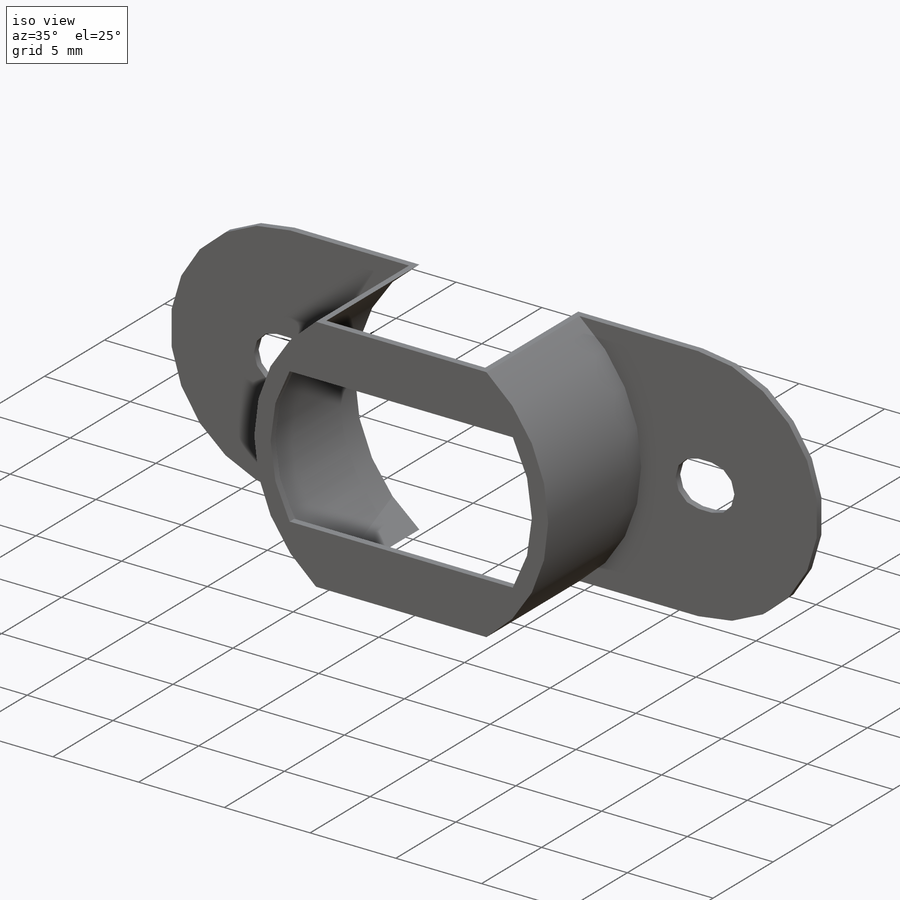
[diagram: iso view]
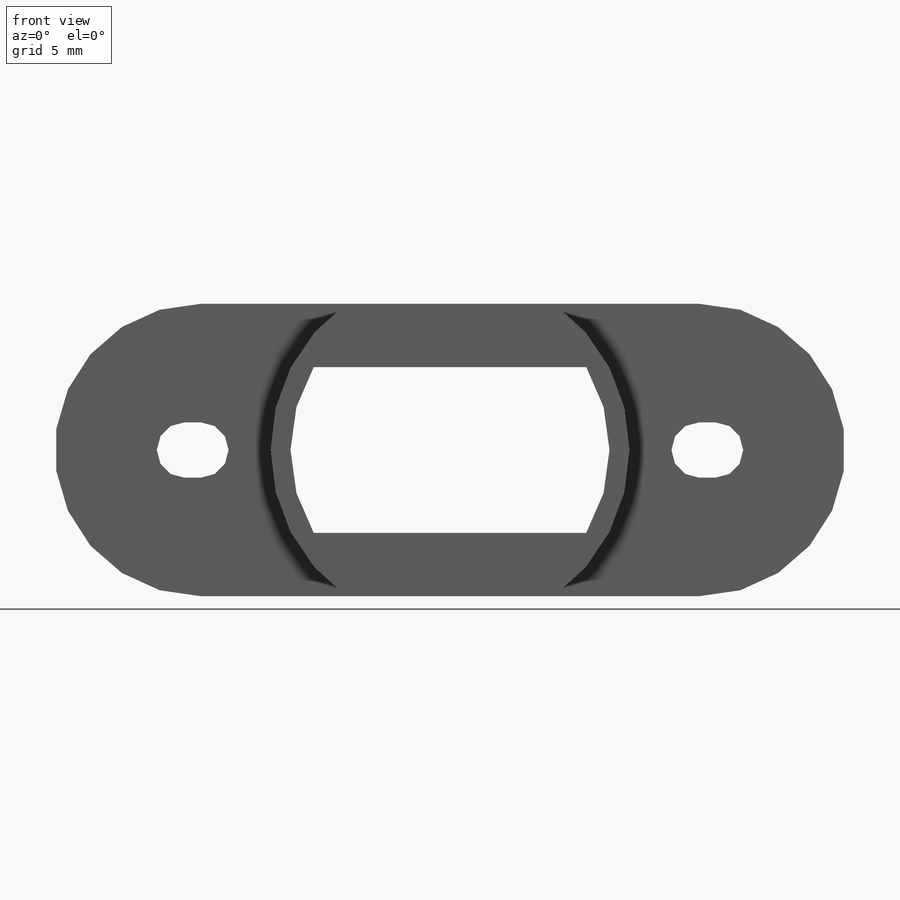
[diagram: front view]
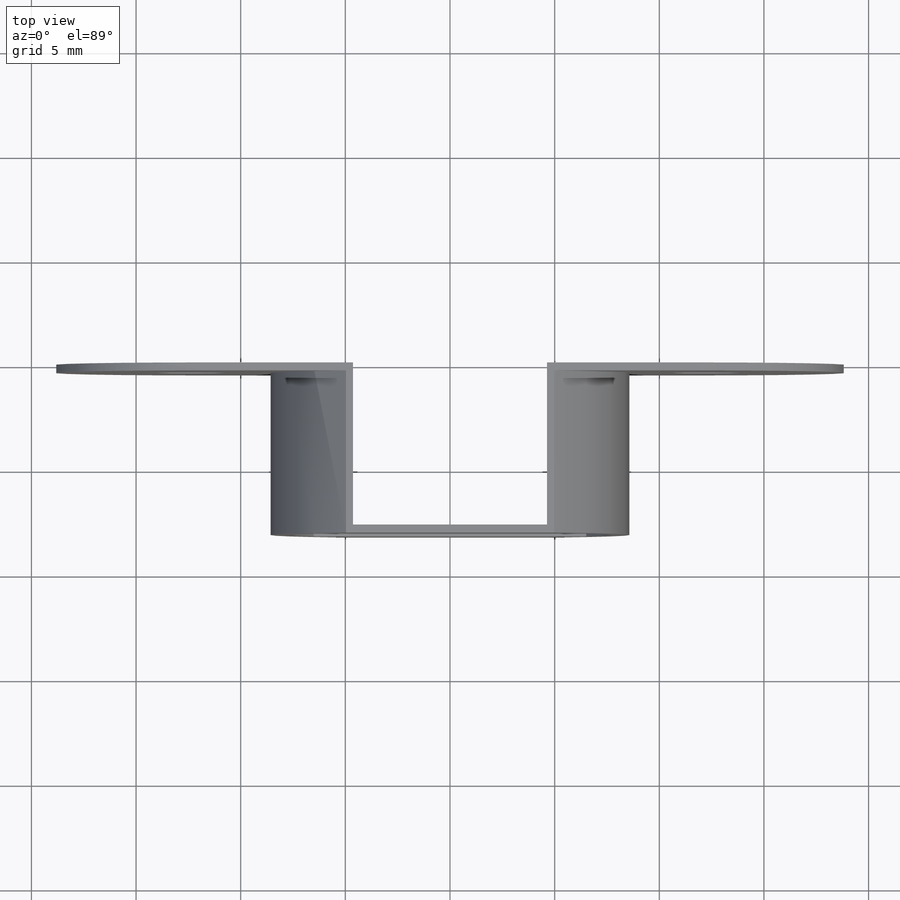
[diagram: top view]
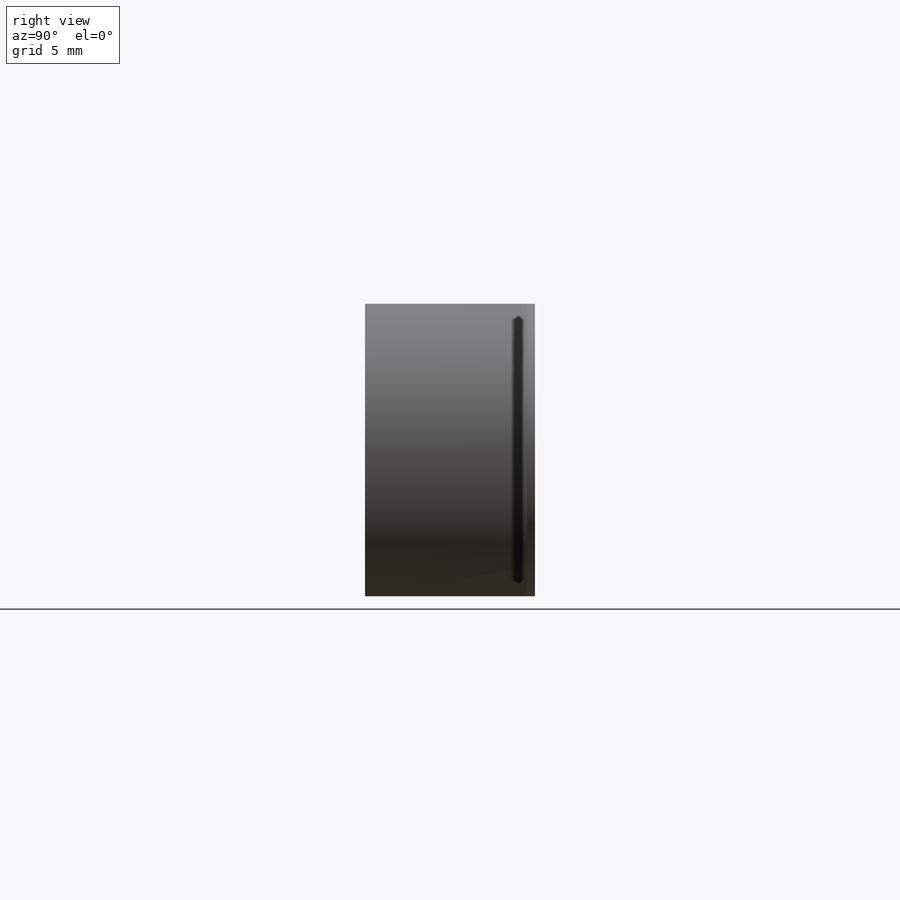
[diagram: right view]
SOLIDWORKS PART (.sldprt)
format: sldprt  version: not decoded by parser v0  size: 185,856 bytes
history: native  units: mm
features: sketch x4, extrude x2, cut_extrude x2, material x1 (+15 scaffold rows collapsed)
feature tree (24):
  scaffold x15  (default folders/planes/origin — collapsed)
  material  "Material <not specified>"
  sketch  "Sketch1"  dims[c1.D3=6.985mm c1.D9=6.985mm c1.D1=13.97mm c1.D2=6.985mm c2.D3=37.084mm c2.D4=11.557mm c2.D5=11.557mm c2.D6=~12.111918mm c2.D7=11.8999mm c2.D8=2.6416mm c2.D9=11.8999mm c2.D10=12.1158mm c2.D11=2.6416mm c2.D12=~0.212018mm c3.D4=11.8999mm c3.D5=11.8999mm c3.D6=0.7874mm c3.D7=0.7874mm]
  extrude  "Extrude1"  Depth=0.381mm
  sketch  "Sketch2"  dims[D1=17.145mm]
  extrude  "Extrude2"  Depth=7.747mm
  sketch  "Sketch3"  dims[D1=16.764mm]
  cut_extrude  "Cut-Extrude1"  Depth=7.747mm
  sketch  "Sketch4"  dims[D1=15.24mm D2=7.9248mm D3=3.9624mm]
  cut_extrude  "Cut-Extrude2"  [1 undecoded]
decode coverage: 7 of 8 modeling features carry decoded parameters
note: ~ marks probable driven/reference dimensions
note: 1 parameter value undecoded
note: suppression state not decoded; provenance and decode notes live in map.json
